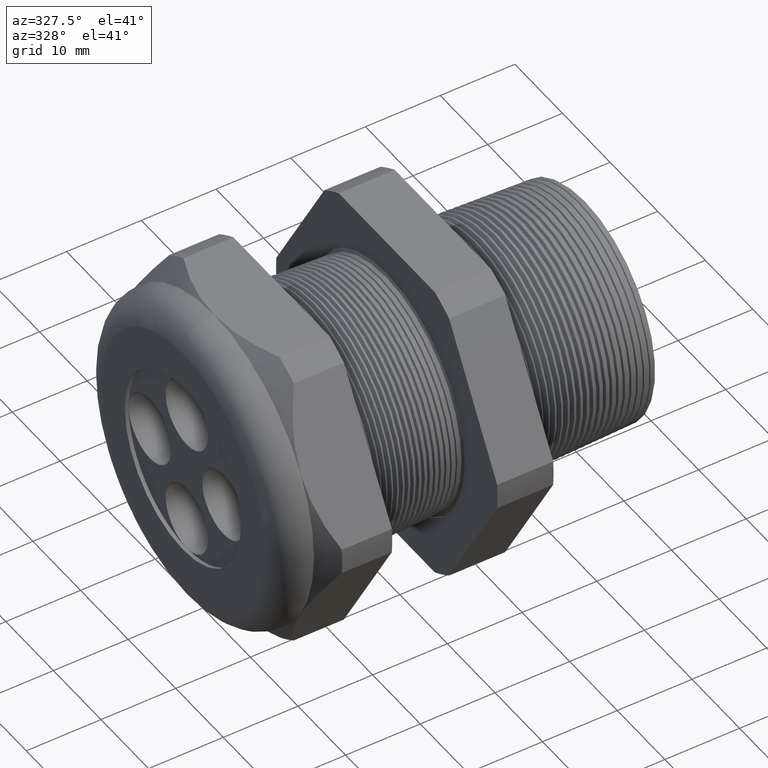
[diagram: clean part render]
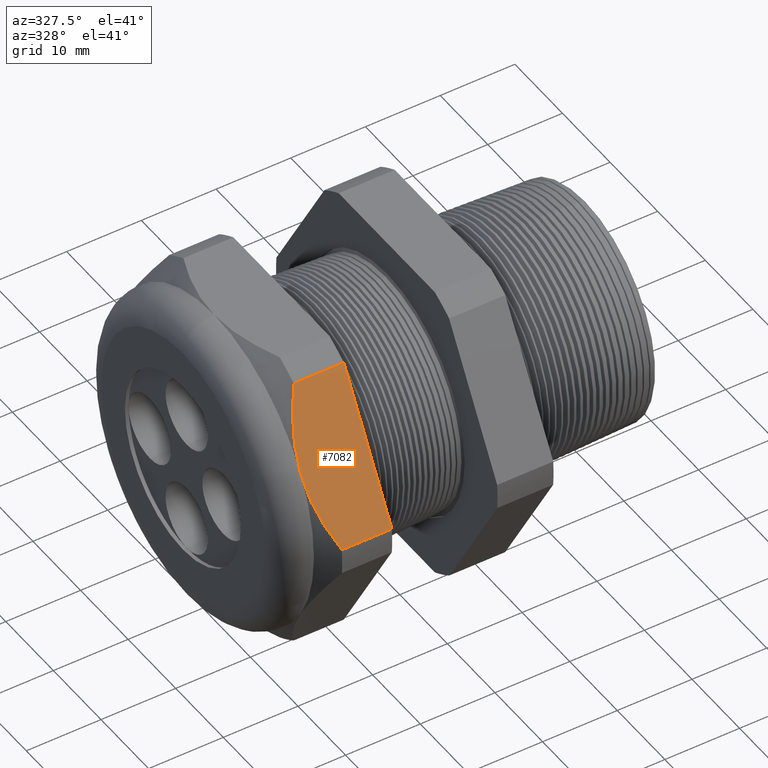
[diagram: same view with one face highlighted and labeled with its STEP entity id]
A machine part, auxiliary view. The second image highlights one B-rep face of the part: STEP entity #7082.
In plain terms, the highlighted planar face has unit normal (0, -0.866, 0.5).
Its self-contained STEP definition (entity closure, byte-faithful):
#492 = AXIS2_PLACEMENT_3D ( 'NONE', #560, #559, #557 ) ;
#493 = PLANE ( 'NONE',  #492 ) ;
#494 = FACE_OUTER_BOUND ( 'NONE', #7078, .T. ) ;
#557 = DIRECTION ( 'NONE',  ( 0.0000000000000000000, -0.4999999999999997200, -0.8660254037844388200 ) ) ;
#559 = DIRECTION ( 'NONE',  ( 0.0000000000000000000, -0.8660254037844388200, 0.4999999999999997200 ) ) ;
#560 = CARTESIAN_POINT ( 'NONE',  ( 0.4399999999999999500, -0.9132000843845194900, 0.06829105636982559000 ) ) ;
#6523 = EDGE_CURVE ( 'NONE', #6527, #6524, #6907, .T. ) ;
#6524 = VERTEX_POINT ( 'NONE', #6903 ) ;
#6527 = VERTEX_POINT ( 'NONE', #6902 ) ;
#6529 = ORIENTED_EDGE ( 'NONE', *, *, #6537, .F. ) ;
#6534 = ORIENTED_EDGE ( 'NONE', *, *, #6523, .F. ) ;
#6537 = EDGE_CURVE ( 'NONE', #6560, #6527, #6945, .T. ) ;
#6542 = ORIENTED_EDGE ( 'NONE', *, *, #6544, .T. ) ;
#6544 = EDGE_CURVE ( 'NONE', #6545, #6524, #6925, .T. ) ;
#6545 = VERTEX_POINT ( 'NONE', #6924 ) ;
#6555 = VERTEX_POINT ( 'NONE', #6951 ) ;
#6556 = EDGE_CURVE ( 'NONE', #6555, #6545, #6950, .T. ) ;
#6557 = ORIENTED_EDGE ( 'NONE', *, *, #6556, .T. ) ;
#6560 = VERTEX_POINT ( 'NONE', #6999 ) ;
#6583 = EDGE_CURVE ( 'NONE', #6560, #6555, #7029, .T. ) ;
#6585 = ORIENTED_EDGE ( 'NONE', *, *, #6583, .T. ) ;
#6902 = CARTESIAN_POINT ( 'NONE',  ( -1.160314960629921200, -0.9132000843845194900, 0.06829105636982570100 ) ) ;
#6903 = CARTESIAN_POINT ( 'NONE',  ( -1.423895669291338700, -0.9132000843845194900, 0.06829105636982570100 ) ) ;
#6904 = DIRECTION ( 'NONE',  ( -1.000000000000000000, 0.0000000000000000000, 0.0000000000000000000 ) ) ;
#6905 = VECTOR ( 'NONE', #6904, 39.37007874015748100 ) ;
#6906 = CARTESIAN_POINT ( 'NONE',  ( 0.4399999999999999500, -0.9132000843845194900, 0.06829105636982570100 ) ) ;
#6907 = LINE ( 'NONE', #6906, #6905 ) ;
#6924 = CARTESIAN_POINT ( 'NONE',  ( -1.514645669291338600, -0.7144709581221622100, 0.4124999999999999200 ) ) ;
#6925 = B_SPLINE_CURVE_WITH_KNOTS ( 'NONE', 3,
 ( #6978, #6977, #6976, #6975, #6974, #6973 ),
 .UNSPECIFIED., .F., .F.,
 ( 4, 2, 4 ),
 ( 0.01036164945538864600, 0.01553879763505035300, 0.02071594581471205800 ),
 .UNSPECIFIED. ) ;
#6942 = DIRECTION ( 'NONE',  ( 0.0000000000000000000, -0.4999999999999997200, -0.8660254037844388200 ) ) ;
#6943 = VECTOR ( 'NONE', #6942, 39.37007874015748900 ) ;
#6944 = CARTESIAN_POINT ( 'NONE',  ( -1.160314960629921200, -0.5532209581221623200, 0.6917931927204812300 ) ) ;
#6945 = LINE ( 'NONE', #6944, #6943 ) ;
#6950 = B_SPLINE_CURVE_WITH_KNOTS ( 'NONE', 3,
 ( #7010, #7009, #7008, #7007, #7006, #7005, #7004, #7003, #7002, #7001 ),
 .UNSPECIFIED., .F., .F.,
 ( 4, 2, 2, 2, 4 ),
 ( 2.483247851884477100E-007, 0.005180948890086924600, 0.007771299172737788200, 0.009066474314063216100, 0.01036164945538864600 ),
 .UNSPECIFIED. ) ;
#6951 = CARTESIAN_POINT ( 'NONE',  ( -1.423895669291338700, -0.5157418318598044900, 0.7567089436301736000 ) ) ;
#6973 = CARTESIAN_POINT ( 'NONE',  ( -1.423895669291338700, -0.9132000843845194900, 0.06829105636982570100 ) ) ;
#6974 = CARTESIAN_POINT ( 'NONE',  ( -1.451372398164721500, -0.8815466788935424300, 0.1231163629127780000 ) ) ;
#6975 = CARTESIAN_POINT ( 'NONE',  ( -1.474375627289489000, -0.8488306607340111400, 0.1797821685864316700 ) ) ;
#6976 = CARTESIAN_POINT ( 'NONE',  ( -1.505964438283854200, -0.7825559566388159400, 0.2945733233359036400 ) ) ;
#6977 = CARTESIAN_POINT ( 'NONE',  ( -1.514645669291338400, -0.7488564788623134300, 0.3529425310333434400 ) ) ;
#6978 = CARTESIAN_POINT ( 'NONE',  ( -1.514645669291338600, -0.7144709581221622100, 0.4124999999999999200 ) ) ;
#6999 = CARTESIAN_POINT ( 'NONE',  ( -1.160314960629921200, -0.5157418318598044900, 0.7567089436301736000 ) ) ;
#7001 = CARTESIAN_POINT ( 'NONE',  ( -1.514645669291338600, -0.7144709581221622100, 0.4124999999999999200 ) ) ;
#7002 = CARTESIAN_POINT ( 'NONE',  ( -1.514645669291338600, -0.7058686793890300800, 0.4273995838266527700 ) ) ;
#7003 = CARTESIAN_POINT ( 'NONE',  ( -1.514101283086533900, -0.6971877207736738600, 0.4424354452068526800 ) ) ;
#7004 = CARTESIAN_POINT ( 'NONE',  ( -1.511939090580068500, -0.6799402181191400700, 0.4723089961081851100 ) ) ;
#7005 = CARTESIAN_POINT ( 'NONE',  ( -1.510328354707567000, -0.6713824640496751700, 0.4871314609551776200 ) ) ;
#7006 = CARTESIAN_POINT ( 'NONE',  ( -1.504003129424732000, -0.6458952435726331700, 0.5312766217651236900 ) ) ;
#7007 = CARTESIAN_POINT ( 'NONE',  ( -1.497795156961973000, -0.6291518768872979000, 0.5602769835538802300 ) ) ;
#7008 = CARTESIAN_POINT ( 'NONE',  ( -1.474021755025360700, -0.5795634430641812800, 0.6461666704032857900 ) ) ;
#7009 = CARTESIAN_POINT ( 'NONE',  ( -1.451338430126443800, -0.5473561059063407600, 0.7019514147371662700 ) ) ;
#7010 = CARTESIAN_POINT ( 'NONE',  ( -1.423895669291338700, -0.5157418318598044900, 0.7567089436301736000 ) ) ;
#7026 = DIRECTION ( 'NONE',  ( -1.000000000000000000, 0.0000000000000000000, 0.0000000000000000000 ) ) ;
#7027 = VECTOR ( 'NONE', #7026, 39.37007874015748100 ) ;
#7028 = CARTESIAN_POINT ( 'NONE',  ( 0.4399999999999999500, -0.5157418318598044900, 0.7567089436301736000 ) ) ;
#7029 = LINE ( 'NONE', #7028, #7027 ) ;
#7078 = EDGE_LOOP ( 'NONE', ( #6585, #6557, #6542, #6534, #6529 ) ) ;
#7082 = ADVANCED_FACE ( 'NONE', ( #494 ), #493, .T. ) ;